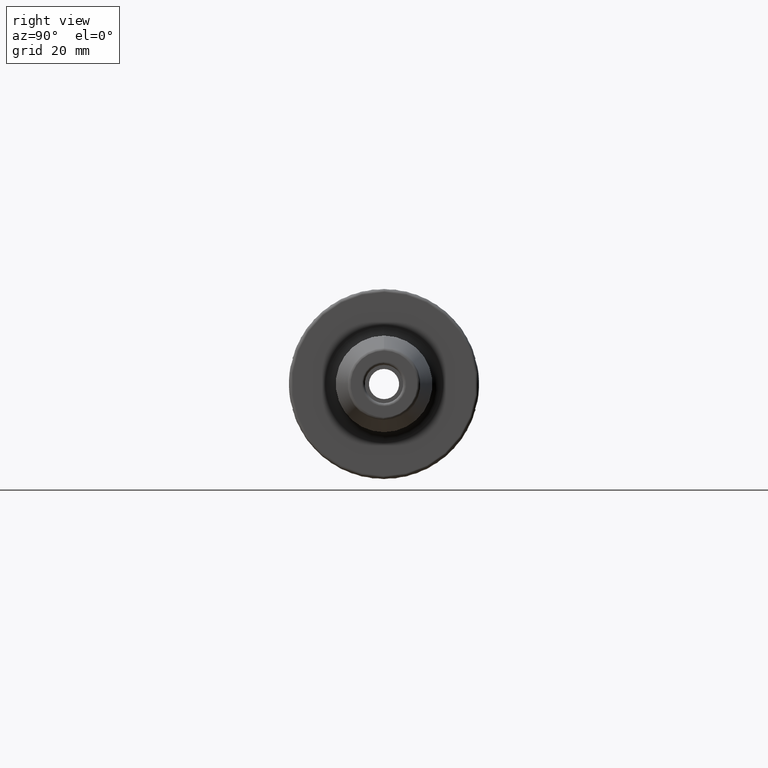
[diagram: clean part render]
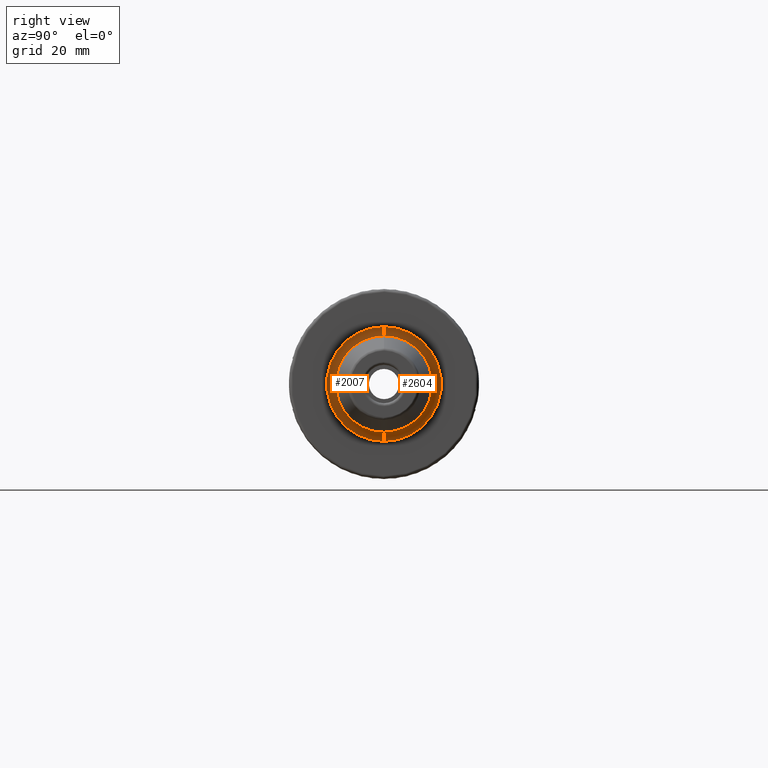
[diagram: same view with one multi-face feature highlighted, each face labeled with its STEP entity id]
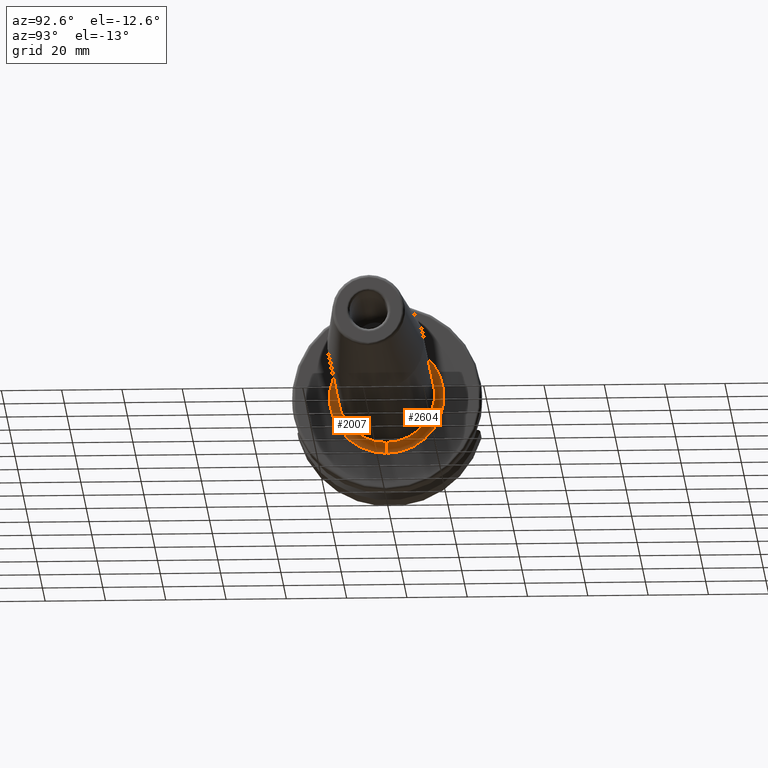
[diagram: same view with one multi-face feature highlighted, each face labeled with its STEP entity id]
A machine part, right view. The highlighted faces form ONE feature: a constant-radius fillet chain: 2 tangent blend faces with common blend radius 3 mm. The faces share edges in the B-rep.
A second angle (auxiliary view) of the same feature is appended — it is thin or edge-on in the first view.
Their STEP definitions:
[1] entity #2604 (Torus):
#476=CARTESIAN_POINT('',(3.E1,0.E0,1.9E1));
#477=DIRECTION('',(0.E0,1.E0,0.E0));
#478=DIRECTION('',(0.E0,0.E0,-1.E0));
#479=AXIS2_PLACEMENT_3D('',#476,#477,#478);
#486=CARTESIAN_POINT('',(3.E1,0.E0,-1.9E1));
#487=DIRECTION('',(0.E0,-1.E0,0.E0));
#488=DIRECTION('',(0.E0,0.E0,1.E0));
#489=AXIS2_PLACEMENT_3D('',#486,#487,#488);
#501=CARTESIAN_POINT('',(2.7E1,0.E0,0.E0));
#502=DIRECTION('',(1.E0,0.E0,0.E0));
#503=DIRECTION('',(0.E0,0.E0,-1.E0));
#504=AXIS2_PLACEMENT_3D('',#501,#502,#503);
#1011=CARTESIAN_POINT('',(3.E1,0.E0,0.E0));
#1012=DIRECTION('',(1.E0,0.E0,0.E0));
#1013=DIRECTION('',(0.E0,0.E0,-1.E0));
#1014=AXIS2_PLACEMENT_3D('',#1011,#1012,#1013);
#1229=CARTESIAN_POINT('',(3.E1,0.E0,-1.6E1));
#1230=VERTEX_POINT('',#1229);
#1259=CARTESIAN_POINT('',(3.E1,0.E0,1.6E1));
#1260=VERTEX_POINT('',#1259);
#1265=CARTESIAN_POINT('',(2.7E1,0.E0,-1.9E1));
#1266=CARTESIAN_POINT('',(2.7E1,0.E0,1.9E1));
#1267=VERTEX_POINT('',#1265);
#1268=VERTEX_POINT('',#1266);
#2593=CARTESIAN_POINT('',(3.E1,0.E0,0.E0));
#2594=DIRECTION('',(1.E0,0.E0,0.E0));
#2595=DIRECTION('',(0.E0,0.E0,1.E0));
#2596=AXIS2_PLACEMENT_3D('',#2593,#2594,#2595);
#2597=TOROIDAL_SURFACE('',#2596,1.9E1,3.E0);
#2598=ORIENTED_EDGE('',*,*,#2019,.F.);
#2599=ORIENTED_EDGE('',*,*,#2003,.F.);
#2600=ORIENTED_EDGE('',*,*,#1975,.T.);
#2601=ORIENTED_EDGE('',*,*,#2000,.T.);
#2602=EDGE_LOOP('',(#2598,#2599,#2600,#2601));
#2603=FACE_OUTER_BOUND('',#2602,.F.);
#2604=ADVANCED_FACE('',(#2603),#2597,.F.);
#480=CIRCLE('',#479,3.E0);
#490=CIRCLE('',#489,3.E0);
#505=CIRCLE('',#504,1.9E1);
#1015=CIRCLE('',#1014,1.6E1);
#1975=EDGE_CURVE('',#1230,#1260,#1015,.T.);
#2000=EDGE_CURVE('',#1260,#1268,#480,.T.);
#2003=EDGE_CURVE('',#1230,#1267,#490,.T.);
#2019=EDGE_CURVE('',#1267,#1268,#505,.T.);
[2] entity #2007 (Torus):
#476=CARTESIAN_POINT('',(3.E1,0.E0,1.9E1));
#477=DIRECTION('',(0.E0,1.E0,0.E0));
#478=DIRECTION('',(0.E0,0.E0,-1.E0));
#479=AXIS2_PLACEMENT_3D('',#476,#477,#478);
#481=CARTESIAN_POINT('',(3.E1,0.E0,0.E0));
#482=DIRECTION('',(-1.E0,0.E0,0.E0));
#483=DIRECTION('',(0.E0,0.E0,-1.E0));
#484=AXIS2_PLACEMENT_3D('',#481,#482,#483);
#486=CARTESIAN_POINT('',(3.E1,0.E0,-1.9E1));
#487=DIRECTION('',(0.E0,-1.E0,0.E0));
#488=DIRECTION('',(0.E0,0.E0,1.E0));
#489=AXIS2_PLACEMENT_3D('',#486,#487,#488);
#506=CARTESIAN_POINT('',(2.7E1,0.E0,0.E0));
#507=DIRECTION('',(1.E0,0.E0,0.E0));
#508=DIRECTION('',(0.E0,0.E0,1.E0));
#509=AXIS2_PLACEMENT_3D('',#506,#507,#508);
#1229=CARTESIAN_POINT('',(3.E1,0.E0,-1.6E1));
#1230=VERTEX_POINT('',#1229);
#1259=CARTESIAN_POINT('',(3.E1,0.E0,1.6E1));
#1260=VERTEX_POINT('',#1259);
#1265=CARTESIAN_POINT('',(2.7E1,0.E0,-1.9E1));
#1266=CARTESIAN_POINT('',(2.7E1,0.E0,1.9E1));
#1267=VERTEX_POINT('',#1265);
#1268=VERTEX_POINT('',#1266);
#1993=CARTESIAN_POINT('',(3.E1,0.E0,0.E0));
#1994=DIRECTION('',(1.E0,0.E0,0.E0));
#1995=DIRECTION('',(0.E0,0.E0,1.E0));
#1996=AXIS2_PLACEMENT_3D('',#1993,#1994,#1995);
#1997=TOROIDAL_SURFACE('',#1996,1.9E1,3.E0);
#1999=ORIENTED_EDGE('',*,*,#1998,.F.);
#2001=ORIENTED_EDGE('',*,*,#2000,.F.);
#2002=ORIENTED_EDGE('',*,*,#1986,.F.);
#2004=ORIENTED_EDGE('',*,*,#2003,.T.);
#2005=EDGE_LOOP('',(#1999,#2001,#2002,#2004));
#2006=FACE_OUTER_BOUND('',#2005,.F.);
#2007=ADVANCED_FACE('',(#2006),#1997,.F.);
#480=CIRCLE('',#479,3.E0);
#485=CIRCLE('',#484,1.6E1);
#490=CIRCLE('',#489,3.E0);
#510=CIRCLE('',#509,1.9E1);
#1986=EDGE_CURVE('',#1230,#1260,#485,.T.);
#1998=EDGE_CURVE('',#1268,#1267,#510,.T.);
#2000=EDGE_CURVE('',#1260,#1268,#480,.T.);
#2003=EDGE_CURVE('',#1230,#1267,#490,.T.);